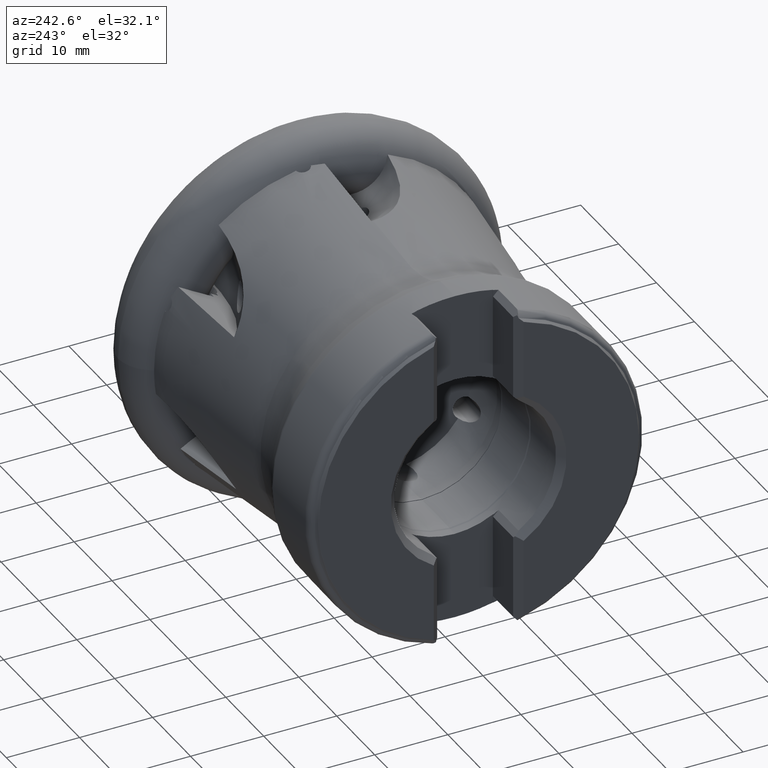
[diagram: clean part render]
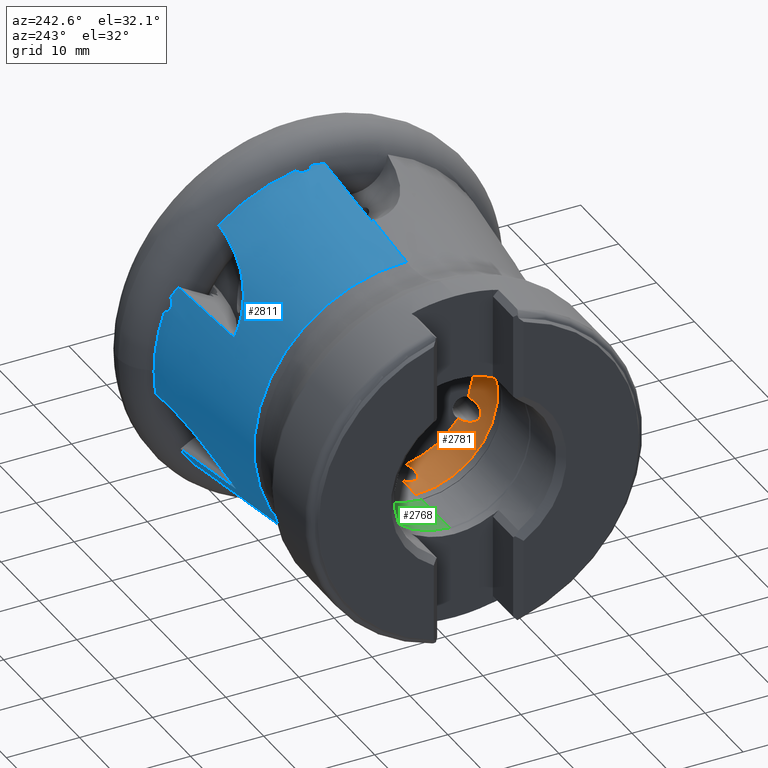
[diagram: same view with three faces highlighted in distinct colors, each labeled with its STEP entity id]
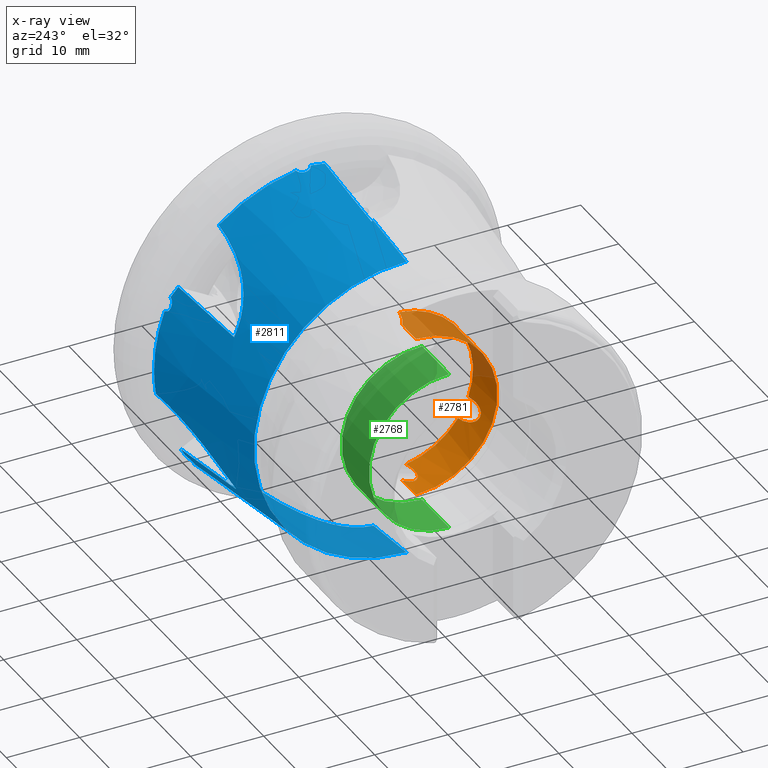
[diagram: x-ray of the same camera — body ghosted, the three highlighted faces saturated]
A machine part, auxiliary view with three faces highlighted in distinct colors.
The next image is the same camera in x-ray (body ghosted, the three faces saturated) — at least one of them is partly hidden behind the body in this view.
Their STEP definitions:

[orange] entity #2781 — the highlighted cylindrical surface (partial cylindrical patch) has radius 11.15 mm, axis along (1, -0, -0).
#460 = EDGE_LOOP ( 'NONE', ( #3216, #3633, #3610, #3591, #3606, #3605, #3601, #3613, #3621, #3594, #3590, #3618, #3617 ) ) ;
#829 = VERTEX_POINT ( 'NONE', #5243 ) ;
#856 = VERTEX_POINT ( 'NONE', #2672 ) ;
#910 = VERTEX_POINT ( 'NONE', #2673 ) ;
#916 = VERTEX_POINT ( 'NONE', #2621 ) ;
#930 = VERTEX_POINT ( 'NONE', #7583 ) ;
#932 = VERTEX_POINT ( 'NONE', #7594 ) ;
#942 = VERTEX_POINT ( 'NONE', #7584 ) ;
#945 = VERTEX_POINT ( 'NONE', #7589 ) ;
#1018 = CARTESIAN_POINT ( 'NONE',  ( 0.0000000000000000000, 1.365481181049298400E-015, 11.14999999999999700 ) ) ;
#1019 = CARTESIAN_POINT ( 'NONE',  ( -32.29904181246355000, 0.0000000000000000000, 0.0000000000000000000 ) ) ;
#1020 = DIRECTION ( 'NONE',  ( 1.000000000000000000, -0.0000000000000000000, -0.0000000000000000000 ) ) ;
#1021 = DIRECTION ( 'NONE',  ( 0.0000000000000000000, 0.0000000000000000000, -1.000000000000000000 ) ) ;
#1023 = DIRECTION ( 'NONE',  ( 1.000000000000000000, -0.0000000000000000000, -0.0000000000000000000 ) ) ;
#1024 = CARTESIAN_POINT ( 'NONE',  ( -25.85000000000000500, -8.492696526799107900, 7.224721842652094500 ) ) ;
#1025 = CARTESIAN_POINT ( 'NONE',  ( -26.27125676650302900, -8.430960953204799300, 7.297292317040339400 ) ) ;
#1026 = CARTESIAN_POINT ( 'NONE',  ( -25.84999999999999800, 0.0000000000000000000, 0.0000000000000000000 ) ) ;
#1027 = DIRECTION ( 'NONE',  ( 1.000000000000000000, -0.0000000000000000000, -0.0000000000000000000 ) ) ;
#1028 = DIRECTION ( 'NONE',  ( 0.0000000000000000000, 0.0000000000000000000, -1.000000000000000000 ) ) ;
#1029 = CARTESIAN_POINT ( 'NONE',  ( -26.70268852159224700, -8.385674476170972700, 7.348732890435326400 ) ) ;
#1030 = CARTESIAN_POINT ( 'NONE',  ( -27.35253180504465600, -8.355734774718406800, 7.382711172284831300 ) ) ;
#1031 = CARTESIAN_POINT ( 'NONE',  ( -27.57074560218834900, -8.352154196715124700, 7.386750651095960400 ) ) ;
#1032 = CARTESIAN_POINT ( 'NONE',  ( -28.00350344363635100, -8.362820151239203500, 7.374673147007954700 ) ) ;
#1033 = CARTESIAN_POINT ( 'NONE',  ( -28.21853476435540700, -8.376751429759247400, 7.358964874840396000 ) ) ;
#1034 = CARTESIAN_POINT ( 'NONE',  ( -28.64406353578609600, -8.432949090000267500, 7.294497802492776900 ) ) ;
#1035 = CARTESIAN_POINT ( 'NONE',  ( -28.85534912507454000, -8.474937882718752000, 7.246314942099926000 ) ) ;
#1036 = CARTESIAN_POINT ( 'NONE',  ( -29.14074530450723800, -8.576736145903501200, 7.124948082095956500 ) ) ;
#1037 = CARTESIAN_POINT ( 'NONE',  ( -29.23152876471797500, -8.617957967614266600, 7.075269791942285600 ) ) ;
#1038 = CARTESIAN_POINT ( 'NONE',  ( -29.38454267036006600, -8.716563902649811600, 6.953427636163299400 ) ) ;
#1039 = CARTESIAN_POINT ( 'NONE',  ( -29.44624027904977100, -8.774061839332928200, 6.881065242200922900 ) ) ;
#1040 = CARTESIAN_POINT ( 'NONE',  ( -29.52039851207418400, -8.900331318139413000, 6.716942939701859800 ) ) ;
#1041 = CARTESIAN_POINT ( 'NONE',  ( -29.53122877785418500, -8.967367247870305000, 6.627269812723159100 ) ) ;
#1042 = CARTESIAN_POINT ( 'NONE',  ( -29.50750158478972900, -9.095212105421921900, 6.450697426340446400 ) ) ;
#1043 = CARTESIAN_POINT ( 'NONE',  ( -29.47419073280669400, -9.155936707129637100, 6.364053143120470300 ) ) ;
#1044 = CARTESIAN_POINT ( 'NONE',  ( -29.33682026034794500, -9.323683111221637200, 6.118074109981218800 ) ) ;
#1045 = CARTESIAN_POINT ( 'NONE',  ( -29.19781386989603400, -9.417177773834271900, 5.971818620644157200 ) ) ;
#1046 = CARTESIAN_POINT ( 'NONE',  ( -29.04398231743207500, -9.497243971403621600, 5.841648478609225300 ) ) ;
#1047 = CARTESIAN_POINT ( 'NONE',  ( -27.98973702992653000, -9.445642024903747800, -5.924723346905923700 ) ) ;
#1048 = CARTESIAN_POINT ( 'NONE',  ( -27.65122404184187500, -9.357787258124929500, -6.064788060241014000 ) ) ;
#1049 = CARTESIAN_POINT ( 'NONE',  ( -25.84999999999999800, 0.0000000000000000000, 0.0000000000000000000 ) ) ;
#1050 = DIRECTION ( 'NONE',  ( 1.000000000000000000, -0.0000000000000000000, -0.0000000000000000000 ) ) ;
#1051 = DIRECTION ( 'NONE',  ( 0.0000000000000000000, 0.0000000000000000000, -1.000000000000000000 ) ) ;
#1052 = CARTESIAN_POINT ( 'NONE',  ( -27.30201525581553700, -9.286565412215592700, -6.171916532230704400 ) ) ;
#1053 = CARTESIAN_POINT ( 'NONE',  ( -26.58788488835342900, -9.172396273203469600, -6.340346792053628300 ) ) ;
#1054 = CARTESIAN_POINT ( 'NONE',  ( -26.22237795968942800, -9.129536751255626500, -6.401275138020767300 ) ) ;
#1055 = CARTESIAN_POINT ( 'NONE',  ( -25.84999999999999800, -9.102050012190872500, -6.440123102517225600 ) ) ;
#1056 = CARTESIAN_POINT ( 'NONE',  ( -29.50799385159563600, -1.073567921365343500, -11.09819588573823300 ) ) ;
#1057 = CARTESIAN_POINT ( 'NONE',  ( -29.46286025454564600, -0.8460033855089065200, -11.12020901185803400 ) ) ;
#1058 = CARTESIAN_POINT ( 'NONE',  ( -25.84999999999999800, 0.0000000000000000000, 0.0000000000000000000 ) ) ;
#1059 = DIRECTION ( 'NONE',  ( 1.000000000000000000, -0.0000000000000000000, -0.0000000000000000000 ) ) ;
#1060 = DIRECTION ( 'NONE',  ( 0.0000000000000000000, 0.0000000000000000000, -1.000000000000000000 ) ) ;
#1061 = CARTESIAN_POINT ( 'NONE',  ( 0.0000000000000000000, 0.0000000000000000000, -11.14999999999999700 ) ) ;
#1062 = CARTESIAN_POINT ( 'NONE',  ( -29.33575754241542600, -0.6415740424387603700, -11.13292186402024300 ) ) ;
#1063 = CARTESIAN_POINT ( 'NONE',  ( -29.03888835685205900, -0.2893676189608385100, -11.14763799481343300 ) ) ;
#1064 = CARTESIAN_POINT ( 'NONE',  ( -28.86240986605501700, -0.1354831957671578100, -11.14999999999999900 ) ) ;
#1065 = CARTESIAN_POINT ( 'NONE',  ( -28.67635802961098100, 1.390289344418008500E-014, -11.14999999999999700 ) ) ;
#1066 = DIRECTION ( 'NONE',  ( 1.000000000000000000, -0.0000000000000000000, -0.0000000000000000000 ) ) ;
#1696 = EDGE_CURVE ( 'NONE', #930, #856, #3179, .T. ) ;
#1697 = EDGE_CURVE ( 'NONE', #942, #910, #3126, .T. ) ;
#1706 = EDGE_CURVE ( 'NONE', #932, #829, #3151, .T. ) ;
#1711 = EDGE_CURVE ( 'NONE', #916, #945, #3149, .T. ) ;
#1786 = EDGE_CURVE ( 'NONE', #2024, #2041, #4805, .T. ) ;
#1788 = EDGE_CURVE ( 'NONE', #2024, #930, #4807, .T. ) ;
#1789 = EDGE_CURVE ( 'NONE', #856, #2017, #4812, .T. ) ;
#1790 = EDGE_CURVE ( 'NONE', #2017, #942, #3093, .T. ) ;
#1791 = EDGE_CURVE ( 'NONE', #910, #932, #4814, .T. ) ;
#1792 = EDGE_CURVE ( 'NONE', #829, #2075, #3140, .T. ) ;
#1793 = EDGE_CURVE ( 'NONE', #2075, #916, #4810, .T. ) ;
#1794 = EDGE_CURVE ( 'NONE', #945, #2081, #3089, .T. ) ;
#1795 = EDGE_CURVE ( 'NONE', #2041, #2081, #4816, .T. ) ;
#2017 = VERTEX_POINT ( 'NONE', #5112 ) ;
#2024 = VERTEX_POINT ( 'NONE', #5119 ) ;
#2041 = VERTEX_POINT ( 'NONE', #5136 ) ;
#2075 = VERTEX_POINT ( 'NONE', #5170 ) ;
#2081 = VERTEX_POINT ( 'NONE', #5176 ) ;
#2621 = CARTESIAN_POINT ( 'NONE',  ( -25.84999999999999800, -2.010444387613850000, -10.96725186016587700 ) ) ;
#2672 = CARTESIAN_POINT ( 'NONE',  ( -25.84999999999999800, -1.026285204183805100, 11.10266808833234200 ) ) ;
#2673 = CARTESIAN_POINT ( 'NONE',  ( -25.84999999999999800, -10.12833521637438100, 4.662544985815199700 ) ) ;
#2781 = ADVANCED_FACE ( 'NONE', ( #4177 ), #4187, .F. ) ;
#3089 = B_SPLINE_CURVE_WITH_KNOTS ( 'NONE', 3,
 ( #1056, #1057, #1062, #1063, #1064, #1065 ),
 .UNSPECIFIED., .F., .F.,
 ( 4, 2, 4 ),
 ( 0.004287498007270833100, 0.004975981053233189500, 0.005664464099195545100 ),
 .UNSPECIFIED. ) ;
#3093 = B_SPLINE_CURVE_WITH_KNOTS ( 'NONE', 3,
 ( #1024, #1025, #1029, #1030, #1031, #1032, #1033, #1034, #1035, #1036, #1037, #1038, #1039, #1040, #1041, #1042, #1043, #1044, #1045, #1046 ),
 .UNSPECIFIED., .F., .F.,
 ( 4, 2, 2, 2, 2, 2, 2, 2, 2, 4 ),
 ( 0.003190311595425564700, 0.004489410090481637900, 0.005138959338009669100, 0.005788508585537700300, 0.006438057833065731500, 0.006762832456829747500, 0.007087607080593763500, 0.007412381704357779600, 0.007737156328121795600, 0.008386705575649825900 ),
 .UNSPECIFIED. ) ;
#3126 = B_SPLINE_CURVE_WITH_KNOTS ( 'NONE', 3,
 ( #5462, #5465, #5474, #5475, #5476, #5477, #5478, #5479, #5480, #5481 ),
 .UNSPECIFIED., .F., .F.,
 ( 4, 2, 2, 2, 4 ),
 ( 0.008386705575649825900, 0.009268095520786355500, 0.01014948546592288300, 0.01103087541105941100, 0.01191226535619594100 ),
 .UNSPECIFIED. ) ;
#3140 = B_SPLINE_CURVE_WITH_KNOTS ( 'NONE', 3,
 ( #1047, #1048, #1052, #1053, #1054, #1055 ),
 .UNSPECIFIED., .F., .F.,
 ( 4, 2, 4 ),
 ( 0.0000000000000000000, 0.001113803814707593700, 0.002227607629415187400 ),
 .UNSPECIFIED. ) ;
#3149 = B_SPLINE_CURVE_WITH_KNOTS ( 'NONE', 3,
 ( #5601, #5604, #5605, #5606, #5607, #5608, #5609, #5610, #5611, #5612, #5613, #5614, #5615, #5616, #5617, #5618, #5619, #5620 ),
 .UNSPECIFIED., .F., .F.,
 ( 4, 2, 2, 2, 2, 2, 2, 2, 4 ),
 ( 0.0000000000000000000, 0.001071874501817712600, 0.002143749003635425200, 0.002679686254544281200, 0.003215623505453137600, 0.003483592130907561500, 0.003751560756361985300, 0.004019529381816409200, 0.004287498007270833100 ),
 .UNSPECIFIED. ) ;
#3151 = B_SPLINE_CURVE_WITH_KNOTS ( 'NONE', 3,
 ( #5545, #5516, #5548, #5549, #5550, #5551, #5552, #5553, #5554, #5555, #5556, #5557, #5558, #5559, #5560, #5561, #5562, #5563, #5564, #5565, #5566, #5567, #5568, #5569, #5570, #5571 ),
 .UNSPECIFIED., .F., .F.,
 ( 4, 2, 2, 2, 2, 2, 2, 2, 2, 2, 2, 2, 4 ),
 ( 0.009958864184129917500, 0.01076065810899776300, 0.01156245203386561100, 0.01236424595873345700, 0.01276514292116738600, 0.01316603988360131500, 0.01356693684603524200, 0.01376738532725220600, 0.01396783380846917200, 0.01436873077090310000, 0.01476962773333702700, 0.01557142165820487600, 0.01637321558307272600 ),
 .UNSPECIFIED. ) ;
#3179 = B_SPLINE_CURVE_WITH_KNOTS ( 'NONE', 3,
 ( #5428, #5461, #5466, #5467, #5468, #5469, #5470, #5471 ),
 .UNSPECIFIED., .F., .F.,
 ( 4, 2, 2, 4 ),
 ( 0.009816031539930379300, 0.01058157923806099500, 0.01134712693619161300, 0.01287822233245285500 ),
 .UNSPECIFIED. ) ;
#3216 = ORIENTED_EDGE ( 'NONE', *, *, #1786, .F. ) ;
#3590 = ORIENTED_EDGE ( 'NONE', *, *, #1711, .T. ) ;
#3591 = ORIENTED_EDGE ( 'NONE', *, *, #1789, .T. ) ;
#3594 = ORIENTED_EDGE ( 'NONE', *, *, #1793, .T. ) ;
#3601 = ORIENTED_EDGE ( 'NONE', *, *, #1791, .T. ) ;
#3605 = ORIENTED_EDGE ( 'NONE', *, *, #1697, .T. ) ;
#3606 = ORIENTED_EDGE ( 'NONE', *, *, #1790, .T. ) ;
#3610 = ORIENTED_EDGE ( 'NONE', *, *, #1696, .T. ) ;
#3613 = ORIENTED_EDGE ( 'NONE', *, *, #1706, .T. ) ;
#3617 = ORIENTED_EDGE ( 'NONE', *, *, #1795, .F. ) ;
#3618 = ORIENTED_EDGE ( 'NONE', *, *, #1794, .T. ) ;
#3621 = ORIENTED_EDGE ( 'NONE', *, *, #1792, .T. ) ;
#3633 = ORIENTED_EDGE ( 'NONE', *, *, #1788, .T. ) ;
#3659 = DIRECTION ( 'NONE',  ( 0.0000000000000000000, 0.0000000000000000000, -1.000000000000000000 ) ) ;
#3660 = CARTESIAN_POINT ( 'NONE',  ( 0.0000000000000000000, 0.0000000000000000000, 0.0000000000000000000 ) ) ;
#3661 = DIRECTION ( 'NONE',  ( 1.000000000000000000, -0.0000000000000000000, -0.0000000000000000000 ) ) ;
#4177 = FACE_OUTER_BOUND ( 'NONE', #460, .T. ) ;
#4187 = CYLINDRICAL_SURFACE ( 'NONE', #7221, 11.14999999999999700 ) ;
#4805 = CIRCLE ( 'NONE', #7492, 11.14999999999999700 ) ;
#4807 = LINE ( 'NONE', #1018, #4813 ) ;
#4810 = CIRCLE ( 'NONE', #7495, 11.14999999999999700 ) ;
#4812 = CIRCLE ( 'NONE', #7493, 11.14999999999999700 ) ;
#4813 = VECTOR ( 'NONE', #1023, 1000.000000000000000 ) ;
#4814 = CIRCLE ( 'NONE', #7494, 11.14999999999999700 ) ;
#4815 = VECTOR ( 'NONE', #1066, 1000.000000000000000 ) ;
#4816 = LINE ( 'NONE', #1061, #4815 ) ;
#5112 = CARTESIAN_POINT ( 'NONE',  ( -25.85000000000000500, -8.492696526799107900, 7.224721842652094500 ) ) ;
#5119 = CARTESIAN_POINT ( 'NONE',  ( -32.29904181246355000, 1.365481181049298400E-015, 11.14999999999999700 ) ) ;
#5136 = CARTESIAN_POINT ( 'NONE',  ( -32.29904181246355000, 0.0000000000000000000, -11.14999999999999700 ) ) ;
#5170 = CARTESIAN_POINT ( 'NONE',  ( -25.84999999999999800, -9.102050012190872500, -6.440123102517225600 ) ) ;
#5176 = CARTESIAN_POINT ( 'NONE',  ( -28.67635802961098100, 1.390289344418008500E-014, -11.14999999999999700 ) ) ;
#5243 = CARTESIAN_POINT ( 'NONE',  ( -27.98973702992653000, -9.445642024903747800, -5.924723346905923700 ) ) ;
#5428 = CARTESIAN_POINT ( 'NONE',  ( -28.67635802961091700, 1.789560752036854300E-014, 11.14999999999999700 ) ) ;
#5461 = CARTESIAN_POINT ( 'NONE',  ( -28.47059289232860000, -0.1498384477643137400, 11.14999999999999500 ) ) ;
#5462 = CARTESIAN_POINT ( 'NONE',  ( -29.04398231743207500, -9.497243971403621600, 5.841648478609225300 ) ) ;
#5465 = CARTESIAN_POINT ( 'NONE',  ( -28.83524435937506100, -9.605887837517698800, 5.665017292008355000 ) ) ;
#5466 = CARTESIAN_POINT ( 'NONE',  ( -28.25217063696806700, -0.2778308771211426800, 11.14711080704291700 ) ) ;
#5467 = CARTESIAN_POINT ( 'NONE',  ( -27.79785458062777800, -0.5036950591664307600, 11.13919030397390300 ) ) ;
#5468 = CARTESIAN_POINT ( 'NONE',  ( -27.56061014767846000, -0.6015080345835837100, 11.13407479623257500 ) ) ;
#5469 = CARTESIAN_POINT ( 'NONE',  ( -26.84280642977706000, -0.8508393352733337700, 11.11873672503456200 ) ) ;
#5470 = CARTESIAN_POINT ( 'NONE',  ( -26.35185827144899300, -0.9624215850915723800, 11.10857137994103500 ) ) ;
#5471 = CARTESIAN_POINT ( 'NONE',  ( -25.84999999999999800, -1.026285204183805100, 11.10266808833234200 ) ) ;
#5474 = CARTESIAN_POINT ( 'NONE',  ( -28.59267286801484400, -9.692391171751609100, 5.513832085072171400 ) ) ;
#5475 = CARTESIAN_POINT ( 'NONE',  ( -28.08669308177924200, -9.836552880478743400, 5.252334558857156400 ) ) ;
#5476 = CARTESIAN_POINT ( 'NONE',  ( -27.82219986851498900, -9.894223646167963800, 5.141809862758163000 ) ) ;
#5477 = CARTESIAN_POINT ( 'NONE',  ( -27.27634507087926600, -9.990750783490945300, 4.951643061380878800 ) ) ;
#5478 = CARTESIAN_POINT ( 'NONE',  ( -26.99325901929969300, -10.02951227529577400, 4.871999364626447900 ) ) ;
#5479 = CARTESIAN_POINT ( 'NONE',  ( -26.42497349170799800, -10.09046286409400400, 4.744476101485705800 ) ) ;
#5480 = CARTESIAN_POINT ( 'NONE',  ( -26.13856725706337900, -10.11291412292029100, 4.696043859151815000 ) ) ;
#5481 = CARTESIAN_POINT ( 'NONE',  ( -25.84999999999999800, -10.12833521637438100, 4.662544985815199700 ) ) ;
#5516 = CARTESIAN_POINT ( 'NONE',  ( -26.11039555769503600, -10.52290907816619600, -3.687052089868210200 ) ) ;
#5545 = CARTESIAN_POINT ( 'NONE',  ( -25.85000000000001600, -10.50314091441258500, -3.742530017513868500 ) ) ;
#5548 = CARTESIAN_POINT ( 'NONE',  ( -26.37332634113454700, -10.53864730590131600, -3.641523639074982600 ) ) ;
#5549 = CARTESIAN_POINT ( 'NONE',  ( -26.90503537943010300, -10.56181223310846700, -3.573780044250531900 ) ) ;
#5550 = CARTESIAN_POINT ( 'NONE',  ( -27.17552067108845600, -10.56930716198334300, -3.551377905902553000 ) ) ;
#5551 = CARTESIAN_POINT ( 'NONE',  ( -27.71552052634048400, -10.57327437960357100, -3.539549096778266300 ) ) ;
#5552 = CARTESIAN_POINT ( 'NONE',  ( -27.98403779159763300, -10.57002565003230500, -3.549442677396200900 ) ) ;
#5553 = CARTESIAN_POINT ( 'NONE',  ( -28.38305633657343200, -10.55143200118641500, -3.604185638248232700 ) ) ;
#5554 = CARTESIAN_POINT ( 'NONE',  ( -28.51542918797448000, -10.54291801810268600, -3.629158011275533300 ) ) ;
#5555 = CARTESIAN_POINT ( 'NONE',  ( -28.77819061484050100, -10.51825109826696200, -3.700040816132375500 ) ) ;
#5556 = CARTESIAN_POINT ( 'NONE',  ( -28.90645439963487800, -10.50234559872431100, -3.745315895493809900 ) ) ;
#5557 = CARTESIAN_POINT ( 'NONE',  ( -29.14698262269091000, -10.45834509193758100, -3.866480592221784600 ) ) ;
#5558 = CARTESIAN_POINT ( 'NONE',  ( -29.25939127862171300, -10.43025939589707100, -3.942493965455294600 ) ) ;
#5559 = CARTESIAN_POINT ( 'NONE',  ( -29.39343037834001400, -10.37306861316544500, -4.089586162425185900 ) ) ;
#5560 = CARTESIAN_POINT ( 'NONE',  ( -29.43082166578540900, -10.35205183504225900, -4.142631101514090200 ) ) ;
#5561 = CARTESIAN_POINT ( 'NONE',  ( -29.48844387031064700, -10.30518496074565400, -4.257878880787375300 ) ) ;
#5562 = CARTESIAN_POINT ( 'NONE',  ( -29.50790636806532800, -10.27961086484395600, -4.319335382345288500 ) ) ;
#5563 = CARTESIAN_POINT ( 'NONE',  ( -29.53596284987968400, -10.20002560815143500, -4.505575246763334500 ) ) ;
#5564 = CARTESIAN_POINT ( 'NONE',  ( -29.51381980087283800, -10.14217225436192200, -4.634147874363866200 ) ) ;
#5565 = CARTESIAN_POINT ( 'NONE',  ( -29.42154111488150300, -10.03277276565024300, -4.866462287067136600 ) ) ;
#5566 = CARTESIAN_POINT ( 'NONE',  ( -29.35230300755666400, -9.979863656711939900, -4.973621789431592600 ) ) ;
#5567 = CARTESIAN_POINT ( 'NONE',  ( -29.11100425405839000, -9.829811573088319300, -5.267416224398174600 ) ) ;
#5568 = CARTESIAN_POINT ( 'NONE',  ( -28.90668599988699600, -9.740595302505969500, -5.428545996680773200 ) ) ;
#5569 = CARTESIAN_POINT ( 'NONE',  ( -28.46897782398749400, -9.580154498701176600, -5.706921084638892700 ) ) ;
#5570 = CARTESIAN_POINT ( 'NONE',  ( -28.23342236638445300, -9.508886033717297800, -5.823894965141116500 ) ) ;
#5571 = CARTESIAN_POINT ( 'NONE',  ( -27.98973702992653000, -9.445642024903747800, -5.924723346905923700 ) ) ;
#5601 = CARTESIAN_POINT ( 'NONE',  ( -25.84999999999999800, -2.010444387613850000, -10.96725186016587700 ) ) ;
#5604 = CARTESIAN_POINT ( 'NONE',  ( -26.20078142261008500, -2.088481621824195500, -10.95294658829436000 ) ) ;
#5605 = CARTESIAN_POINT ( 'NONE',  ( -26.55370356905937600, -2.146954705788751000, -10.94140585113192500 ) ) ;
#5606 = CARTESIAN_POINT ( 'NONE',  ( -27.26472740965759900, -2.217029590990614800, -10.92742221663299800 ) ) ;
#5607 = CARTESIAN_POINT ( 'NONE',  ( -27.62570386606793000, -2.229575642011566700, -10.92484683376801700 ) ) ;
#5608 = CARTESIAN_POINT ( 'NONE',  ( -28.16293958803506200, -2.188353437268240100, -10.93315168214462000 ) ) ;
#5609 = CARTESIAN_POINT ( 'NONE',  ( -28.34046823552341000, -2.164605180443754100, -10.93794419449178100 ) ) ;
#5610 = CARTESIAN_POINT ( 'NONE',  ( -28.69059026901666700, -2.085125052009013700, -10.95337355824701400 ) ) ;
#5611 = CARTESIAN_POINT ( 'NONE',  ( -28.86429472895121900, -2.029486016627060100, -10.96407593319643900 ) ) ;
#5612 = CARTESIAN_POINT ( 'NONE',  ( -29.10412620856497800, -1.903512024042959300, -10.98639889201522400 ) ) ;
#5613 = CARTESIAN_POINT ( 'NONE',  ( -29.17986111628248500, -1.854547346733000700, -10.99484344994061900 ) ) ;
#5614 = CARTESIAN_POINT ( 'NONE',  ( -29.31576391940979700, -1.738973574648220200, -11.01371414449511700 ) ) ;
#5615 = CARTESIAN_POINT ( 'NONE',  ( -29.37718968494170800, -1.670570793627700600, -11.02441265884899800 ) ) ;
#5616 = CARTESIAN_POINT ( 'NONE',  ( -29.47004133889700800, -1.517482538196253100, -11.04652560741980800 ) ) ;
#5617 = CARTESIAN_POINT ( 'NONE',  ( -29.50200925753126700, -1.431013037410894000, -11.05814824861684900 ) ) ;
#5618 = CARTESIAN_POINT ( 'NONE',  ( -29.52943745917899000, -1.254085116257815700, -11.07960791376700800 ) ) ;
#5619 = CARTESIAN_POINT ( 'NONE',  ( -29.52556057024394700, -1.162139682475989500, -11.08962802457889700 ) ) ;
#5620 = CARTESIAN_POINT ( 'NONE',  ( -29.50799385159563600, -1.073567921365343500, -11.09819588573823300 ) ) ;
#7221 = AXIS2_PLACEMENT_3D ( 'NONE', #3660, #3661, #3659 ) ;
#7492 = AXIS2_PLACEMENT_3D ( 'NONE', #1019, #1020, #1021 ) ;
#7493 = AXIS2_PLACEMENT_3D ( 'NONE', #1026, #1027, #1028 ) ;
#7494 = AXIS2_PLACEMENT_3D ( 'NONE', #1049, #1050, #1051 ) ;
#7495 = AXIS2_PLACEMENT_3D ( 'NONE', #1058, #1059, #1060 ) ;
#7583 = CARTESIAN_POINT ( 'NONE',  ( -28.67635802961091700, 1.789560752036854300E-014, 11.14999999999999700 ) ) ;
#7584 = CARTESIAN_POINT ( 'NONE',  ( -29.04398231743207500, -9.497243971403621600, 5.841648478609225300 ) ) ;
#7589 = CARTESIAN_POINT ( 'NONE',  ( -29.50799385159563600, -1.073567921365343500, -11.09819588573823300 ) ) ;
#7594 = CARTESIAN_POINT ( 'NONE',  ( -25.85000000000001600, -10.50314091441258500, -3.742530017513868500 ) ) ;

[blue] entity #2811 — the highlighted conical surface has half-angle 6.661 deg.
#510 = EDGE_LOOP ( 'NONE', ( #2464, #2465, #2466, #2467, #2468, #1976, #1975, #1974, #1950, #1977, #2482, #1925, #1924, #1990, #1979, #1978, #1984, #1983, #1982, #1985 ) ) ;
#867 = VERTEX_POINT ( 'NONE', #2642 ) ;
#876 = VERTEX_POINT ( 'NONE', #2633 ) ;
#899 = VERTEX_POINT ( 'NONE', #2674 ) ;
#900 = VERTEX_POINT ( 'NONE', #2630 ) ;
#906 = VERTEX_POINT ( 'NONE', #2670 ) ;
#908 = VERTEX_POINT ( 'NONE', #2634 ) ;
#909 = VERTEX_POINT ( 'NONE', #2647 ) ;
#912 = VERTEX_POINT ( 'NONE', #2654 ) ;
#1067 = CARTESIAN_POINT ( 'NONE',  ( -8.259298583854146600, 23.10317955380113000, -3.437829605566639300 ) ) ;
#1087 = CARTESIAN_POINT ( 'NONE',  ( -29.78897802662788800, 0.0000000000000000000, 0.0000000000000000000 ) ) ;
#1088 = DIRECTION ( 'NONE',  ( 1.000000000000000000, -0.0000000000000000000, -0.0000000000000000000 ) ) ;
#1089 = DIRECTION ( 'NONE',  ( 0.0000000000000000000, 0.0000000000000000000, -1.000000000000000000 ) ) ;
#1633 = EDGE_CURVE ( 'NONE', #867, #900, #2118, .T. ) ;
#1637 = EDGE_CURVE ( 'NONE', #908, #6024, #2121, .T. ) ;
#1717 = EDGE_CURVE ( 'NONE', #906, #912, #3180, .T. ) ;
#1728 = EDGE_CURVE ( 'NONE', #909, #900, #3150, .T. ) ;
#1737 = EDGE_CURVE ( 'NONE', #2057, #6024, #3123, .T. ) ;
#1817 = EDGE_CURVE ( 'NONE', #876, #2079, #4844, .T. ) ;
#1818 = EDGE_CURVE ( 'NONE', #2077, #2079, #3104, .T. ) ;
#1819 = EDGE_CURVE ( 'NONE', #2086, #2077, #3170, .T. ) ;
#1820 = EDGE_CURVE ( 'NONE', #2086, #2057, #3116, .T. ) ;
#1821 = EDGE_CURVE ( 'NONE', #2047, #908, #3160, .T. ) ;
#1822 = EDGE_CURVE ( 'NONE', #2028, #2047, #3105, .T. ) ;
#1823 = EDGE_CURVE ( 'NONE', #2028, #909, #3121, .T. ) ;
#1824 = EDGE_CURVE ( 'NONE', #2054, #867, #4849, .T. ) ;
#1825 = EDGE_CURVE ( 'NONE', #2050, #2054, #3127, .T. ) ;
#1826 = EDGE_CURVE ( 'NONE', #2058, #2050, #3162, .T. ) ;
#1827 = EDGE_CURVE ( 'NONE', #2058, #906, #3133, .T. ) ;
#1828 = EDGE_CURVE ( 'NONE', #2064, #912, #4848, .T. ) ;
#1829 = EDGE_CURVE ( 'NONE', #2083, #2064, #3178, .T. ) ;
#1830 = EDGE_CURVE ( 'NONE', #899, #2083, #4851, .T. ) ;
#1924 = ORIENTED_EDGE ( 'NONE', *, *, #1824, .F. ) ;
#1925 = ORIENTED_EDGE ( 'NONE', *, *, #1633, .F. ) ;
#1950 = ORIENTED_EDGE ( 'NONE', *, *, #1822, .F. ) ;
#1974 = ORIENTED_EDGE ( 'NONE', *, *, #1821, .F. ) ;
#1975 = ORIENTED_EDGE ( 'NONE', *, *, #1637, .F. ) ;
#1976 = ORIENTED_EDGE ( 'NONE', *, *, #1737, .T. ) ;
#1977 = ORIENTED_EDGE ( 'NONE', *, *, #1823, .T. ) ;
#1978 = ORIENTED_EDGE ( 'NONE', *, *, #1827, .T. ) ;
#1979 = ORIENTED_EDGE ( 'NONE', *, *, #1826, .F. ) ;
#1982 = ORIENTED_EDGE ( 'NONE', *, *, #1829, .F. ) ;
#1983 = ORIENTED_EDGE ( 'NONE', *, *, #1828, .F. ) ;
#1984 = ORIENTED_EDGE ( 'NONE', *, *, #1717, .T. ) ;
#1985 = ORIENTED_EDGE ( 'NONE', *, *, #1830, .F. ) ;
#1990 = ORIENTED_EDGE ( 'NONE', *, *, #1825, .F. ) ;
#2028 = VERTEX_POINT ( 'NONE', #5123 ) ;
#2047 = VERTEX_POINT ( 'NONE', #5142 ) ;
#2050 = VERTEX_POINT ( 'NONE', #5145 ) ;
#2054 = VERTEX_POINT ( 'NONE', #5149 ) ;
#2057 = VERTEX_POINT ( 'NONE', #5152 ) ;
#2058 = VERTEX_POINT ( 'NONE', #5153 ) ;
#2064 = VERTEX_POINT ( 'NONE', #5159 ) ;
#2077 = VERTEX_POINT ( 'NONE', #5172 ) ;
#2079 = VERTEX_POINT ( 'NONE', #5174 ) ;
#2083 = VERTEX_POINT ( 'NONE', #5178 ) ;
#2086 = VERTEX_POINT ( 'NONE', #5181 ) ;
#2118 = CIRCLE ( 'NONE', #3427, 23.35755933080304900 ) ;
#2121 = CIRCLE ( 'NONE', #3429, 23.35755933080304900 ) ;
#2464 = ORIENTED_EDGE ( 'NONE', *, *, #3282, .T. ) ;
#2465 = ORIENTED_EDGE ( 'NONE', *, *, #1817, .T. ) ;
#2466 = ORIENTED_EDGE ( 'NONE', *, *, #1818, .F. ) ;
#2467 = ORIENTED_EDGE ( 'NONE', *, *, #1819, .F. ) ;
#2468 = ORIENTED_EDGE ( 'NONE', *, *, #1820, .T. ) ;
#2482 = ORIENTED_EDGE ( 'NONE', *, *, #1728, .T. ) ;
#2537 = CARTESIAN_POINT ( 'NONE',  ( -21.10432963797337500, 0.1993562321270252500, 21.85681944625827800 ) ) ;
#2541 = DIRECTION ( 'NONE',  ( 0.9932499999999996300, 1.420507805710285800E-017, 0.1159932648906851100 ) ) ;
#2545 = CARTESIAN_POINT ( 'NONE',  ( -21.09869952453777100, 0.09936353463476828300, 21.85815431258176000 ) ) ;
#2546 = CARTESIAN_POINT ( 'NONE',  ( -8.255639792947558700, 2.860528353651572300E-015, 23.35798661004286100 ) ) ;
#2550 = CARTESIAN_POINT ( 'NONE',  ( -8.794040015883560100, 0.3000000000001637500, 23.29317958684482200 ) ) ;
#2551 = CARTESIAN_POINT ( 'NONE',  ( -21.10722062831362000, 0.3000000000001529800, 21.85510028599445700 ) ) ;
#2552 = CARTESIAN_POINT ( 'NONE',  ( -12.89843385472835600, 0.3000000000001603100, 22.81382240028789000 ) ) ;
#2553 = CARTESIAN_POINT ( 'NONE',  ( -21.09042232680230100, -2.708694215730958400E-015, 21.85912093648258300 ) ) ;
#2554 = CARTESIAN_POINT ( 'NONE',  ( -8.794040015883560100, 0.3000000000001637500, 23.29317958684482200 ) ) ;
#2555 = CARTESIAN_POINT ( 'NONE',  ( -8.643605725123910200, 0.8680326473603715600, 23.30343312544116000 ) ) ;
#2556 = CARTESIAN_POINT ( 'NONE',  ( -17.00282741203699600, 0.3000000000001570300, 22.33446280312862700 ) ) ;
#2557 = CARTESIAN_POINT ( 'NONE',  ( -21.10722062831362000, 0.3000000000001529800, 21.85510028599445700 ) ) ;
#2558 = CARTESIAN_POINT ( 'NONE',  ( -21.08671044453084800, 18.73062510251226300, 11.29219946470902700 ) ) ;
#2559 = CARTESIAN_POINT ( 'NONE',  ( -21.10722062831362700, 19.07707204992784600, 10.66774252186171900 ) ) ;
#2560 = CARTESIAN_POINT ( 'NONE',  ( -8.493172639872296900, 1.436060742780209500, 23.29293067867585200 ) ) ;
#2561 = CARTESIAN_POINT ( 'NONE',  ( -8.342941742279826700, 2.003325387322547200, 23.26168627806557900 ) ) ;
#2562 = CARTESIAN_POINT ( 'NONE',  ( -8.794040015883558300, 20.32248525712084600, 11.38678217228689400 ) ) ;
#2563 = CARTESIAN_POINT ( 'NONE',  ( -8.794040015883558300, 20.32248525712084600, 11.38678217228689400 ) ) ;
#2564 = CARTESIAN_POINT ( 'NONE',  ( -12.89843385472835300, 19.90734975607589500, 11.14710357900842700 ) ) ;
#2565 = CARTESIAN_POINT ( 'NONE',  ( -20.93070818173582000, 18.38348096585274800, 11.87906175238771800 ) ) ;
#2566 = CARTESIAN_POINT ( 'NONE',  ( -20.52302818187778400, 17.86599217048440700, 12.71359864805233100 ) ) ;
#2567 = CARTESIAN_POINT ( 'NONE',  ( -20.35887098541302700, 17.69606150601229500, 12.98084032176922300 ) ) ;
#2568 = CARTESIAN_POINT ( 'NONE',  ( -19.99001509401025000, 17.37017077095026000, 13.48415288124889100 ) ) ;
#2569 = CARTESIAN_POINT ( 'NONE',  ( -19.78418935953425300, 17.21279773522803300, 13.72249764745940400 ) ) ;
#2570 = CARTESIAN_POINT ( 'NONE',  ( -19.33511949738272400, 16.90911264584615700, 14.17676711850417200 ) ) ;
#2571 = CARTESIAN_POINT ( 'NONE',  ( -19.09160384935505000, 16.76291248426391100, 14.39249494364066900 ) ) ;
#2572 = CARTESIAN_POINT ( 'NONE',  ( -18.58384262477769500, 16.48820746652861400, 14.79532783844700500 ) ) ;
#2573 = CARTESIAN_POINT ( 'NONE',  ( -18.31812545334405200, 16.35866628097842200, 14.98397841699995500 ) ) ;
#2574 = CARTESIAN_POINT ( 'NONE',  ( -17.76654125462588100, 16.11402648783196100, 15.34032869355986900 ) ) ;
#2575 = CARTESIAN_POINT ( 'NONE',  ( -17.48065510078624000, 15.99893710930627400, 15.50800544905283300 ) ) ;
#2576 = CARTESIAN_POINT ( 'NONE',  ( -16.89111441415565900, 15.78251719089063500, 15.82558210388829100 ) ) ;
#2577 = CARTESIAN_POINT ( 'NONE',  ( -16.58624945633259200, 15.68084859423281300, 15.97599035012475500 ) ) ;
#2578 = CARTESIAN_POINT ( 'NONE',  ( -15.65808239152570100, 15.39890586134594800, 16.39944670130651600 ) ) ;
#2579 = CARTESIAN_POINT ( 'NONE',  ( -15.02177853077793300, 15.24127589875454300, 16.64543321009598000 ) ) ;
#2580 = CARTESIAN_POINT ( 'NONE',  ( -13.72272593903172800, 14.97717548332377800, 17.08571003610999700 ) ) ;
#2581 = CARTESIAN_POINT ( 'NONE',  ( -13.05988350073040400, 14.87081254706593800, 17.27977469922970900 ) ) ;
#2582 = CARTESIAN_POINT ( 'NONE',  ( -11.71287358512223900, 14.70285194360549300, 17.62823743924204600 ) ) ;
#2583 = CARTESIAN_POINT ( 'NONE',  ( -11.02705079004839200, 14.64124124417348400, 17.78282973570439300 ) ) ;
#2584 = CARTESIAN_POINT ( 'NONE',  ( -9.648625901037831900, 14.55749547395035000, 18.05868495867879300 ) ) ;
#2585 = CARTESIAN_POINT ( 'NONE',  ( -8.955487847781375500, 14.53517534300735500, 18.18015712324685800 ) ) ;
#2586 = CARTESIAN_POINT ( 'NONE',  ( -8.259298583854159000, 14.52883754920347000, 18.28902559900171800 ) ) ;
#2587 = CARTESIAN_POINT ( 'NONE',  ( -8.643605725123910200, 20.61538140570405300, 10.89997823879218900 ) ) ;
#2588 = CARTESIAN_POINT ( 'NONE',  ( -17.00282741203699300, 19.49221216738809700, 10.90742378042880000 ) ) ;
#2589 = CARTESIAN_POINT ( 'NONE',  ( -21.10722062831362700, 19.07707204992784600, 10.66774252186171900 ) ) ;
#2590 = CARTESIAN_POINT ( 'NONE',  ( -8.794040015883560100, 20.02248525712060400, -11.90639741455797900 ) ) ;
#2591 = CARTESIAN_POINT ( 'NONE',  ( -8.493172639872296900, 20.89030006771332300, 10.40280025471266800 ) ) ;
#2592 = CARTESIAN_POINT ( 'NONE',  ( -8.342941742279826700, 21.14687394532997200, 9.895912461565119500 ) ) ;
#2593 = CARTESIAN_POINT ( 'NONE',  ( -21.08671044453084400, 19.14464415229515700, -10.57509743518365900 ) ) ;
#2594 = CARTESIAN_POINT ( 'NONE',  ( -20.93070818173583100, 19.47930973361822600, -9.981030650222347600 ) ) ;
#2595 = CARTESIAN_POINT ( 'NONE',  ( -8.259298583872558600, 0.0000000000000000000, 0.0000000000000000000 ) ) ;
#2596 = DIRECTION ( 'NONE',  ( 1.000000000000000000, -0.0000000000000000000, -0.0000000000000000000 ) ) ;
#2597 = DIRECTION ( 'NONE',  ( 0.0000000000000000000, 0.0000000000000000000, -1.000000000000000000 ) ) ;
#2598 = CARTESIAN_POINT ( 'NONE',  ( -21.10722062831359800, 18.77707204992760700, -11.18735776413277300 ) ) ;
#2599 = CARTESIAN_POINT ( 'NONE',  ( -20.52302818187779100, 19.94329548797501400, -9.115603759427248300 ) ) ;
#2600 = CARTESIAN_POINT ( 'NONE',  ( -20.35887098541302400, 20.08976823412764300, -8.834818650253991400 ) ) ;
#2601 = CARTESIAN_POINT ( 'NONE',  ( -19.99001509401026100, 20.36270432914979600, -8.300932715092454100 ) ) ;
#2602 = CARTESIAN_POINT ( 'NONE',  ( -19.78418935953424900, 20.49043043368604300, -8.045471285181077900 ) ) ;
#2603 = CARTESIAN_POINT ( 'NONE',  ( -19.33511949738272100, 20.73199679108358500, -7.555337547503439700 ) ) ;
#2604 = CARTESIAN_POINT ( 'NONE',  ( -19.09160384935504200, 20.84572248716383300, -7.320860580967574200 ) ) ;
#2605 = CARTESIAN_POINT ( 'NONE',  ( -18.58384262477769500, 21.05723349867849600, -6.881542609658584600 ) ) ;
#2606 = CARTESIAN_POINT ( 'NONE',  ( -18.31812545334404500, 21.15583909936890400, -6.675031362859288100 ) ) ;
#2607 = CARTESIAN_POINT ( 'NONE',  ( -17.76654125462586700, 21.34212759494215900, -6.284991948937916500 ) ) ;
#2608 = CARTESIAN_POINT ( 'NONE',  ( -17.48065510078622600, 21.42979523556038000, -6.101483245682432600 ) ) ;
#2609 = CARTESIAN_POINT ( 'NONE',  ( -16.89111441415565600, 21.59661472708895500, -5.755269771031805700 ) ) ;
#2610 = CARTESIAN_POINT ( 'NONE',  ( -16.58624945633258500, 21.67603779093948900, -5.592018060440787000 ) ) ;
#2611 = CARTESIAN_POINT ( 'NONE',  ( -15.65808239152569400, 21.90179038201333100, -5.136120315757472600 ) ) ;
#2612 = CARTESIAN_POINT ( 'NONE',  ( -15.02177853077792200, 22.03600596631753600, -4.876615509360995300 ) ) ;
#2613 = CARTESIAN_POINT ( 'NONE',  ( -13.72272593903172000, 22.28524667462788500, -4.427759427440920000 ) ) ;
#2614 = CARTESIAN_POINT ( 'NONE',  ( -13.05988350073039500, 22.40013013473748400, -4.238614091060673800 ) ) ;
#2615 = CARTESIAN_POINT ( 'NONE',  ( -11.71287358512223000, 22.61792741813027900, -3.918924571622792300 ) ) ;
#2616 = CARTESIAN_POINT ( 'NONE',  ( -11.02705079004838900, 22.72100292438004500, -3.788271992538575300 ) ) ;
#2617 = CARTESIAN_POINT ( 'NONE',  ( -9.648625901037830100, 22.91802767013092900, -3.577818416578648600 ) ) ;
#2618 = CARTESIAN_POINT ( 'NONE',  ( -8.955487847781363100, 23.01206558502807600, -3.497752533882195100 ) ) ;
#2630 = CARTESIAN_POINT ( 'NONE',  ( -8.259298583872920900, 21.91366384397623100, 8.084980817861692900 ) ) ;
#2633 = CARTESIAN_POINT ( 'NONE',  ( -29.78897802662788800, 2.706521445093884100E-015, 20.84329020357923000 ) ) ;
#2634 = CARTESIAN_POINT ( 'NONE',  ( -8.259298583854159000, 14.52883754920347000, 18.28902559900171800 ) ) ;
#2642 = CARTESIAN_POINT ( 'NONE',  ( -8.259298583872558600, 23.35755933080336500, 0.0000000000000000000 ) ) ;
#2647 = CARTESIAN_POINT ( 'NONE',  ( -8.342941742279826700, 21.14687394532997200, 9.895912461565119500 ) ) ;
#2654 = CARTESIAN_POINT ( 'NONE',  ( -8.259298583872920900, 17.95863069936619300, -14.93529916994516200 ) ) ;
#2670 = CARTESIAN_POINT ( 'NONE',  ( -8.342941742279828400, 19.14354855800733900, -13.36577381650049800 ) ) ;
#2674 = CARTESIAN_POINT ( 'NONE',  ( -29.78897802662788800, 0.0000000000000000000, -20.84329020357923000 ) ) ;
#2811 = ADVANCED_FACE ( 'NONE', ( #4261 ), #4265, .T. ) ;
#3104 = B_SPLINE_CURVE_WITH_KNOTS ( 'NONE', 3,
 ( #2551, #2537, #2545, #2553 ),
 .UNSPECIFIED., .F., .F.,
 ( 4, 4 ),
 ( 2.114194236346733600E-018, 0.0002957698718601648300 ),
 .UNSPECIFIED. ) ;
#3105 = B_SPLINE_CURVE_WITH_KNOTS ( 'NONE', 3,
 ( #2562, #2564, #2588, #2589 ),
 .UNSPECIFIED., .F., .F.,
 ( 4, 4 ),
 ( 0.0005422610846556154600, 0.01293913524187180100 ),
 .UNSPECIFIED. ) ;
#3116 =( BOUNDED_CURVE ( )  B_SPLINE_CURVE ( 3, ( #2554, #2555, #2560, #2561 ),
 .UNSPECIFIED., .F., .T. ) 
 B_SPLINE_CURVE_WITH_KNOTS ( ( 4, 4 ),
 ( 4.694331337052691600, 4.767438720164823200 ),
 .UNSPECIFIED. ) 
 CURVE ( )  GEOMETRIC_REPRESENTATION_ITEM ( )  RATIONAL_B_SPLINE_CURVE ( ( 1.000000000000000000, 0.9995546588022379300, 0.9995546588022379300, 1.000000000000000000 ) ) 
 REPRESENTATION_ITEM ( '' )  );
#3121 =( BOUNDED_CURVE ( )  B_SPLINE_CURVE ( 3, ( #2563, #2587, #2591, #2592 ),
 .UNSPECIFIED., .F., .F. ) 
 B_SPLINE_CURVE_WITH_KNOTS ( ( 4, 4 ),
 ( 4.694331337052691600, 4.767438720164823200 ),
 .UNSPECIFIED. ) 
 CURVE ( )  GEOMETRIC_REPRESENTATION_ITEM ( )  RATIONAL_B_SPLINE_CURVE ( ( 1.000000000000000000, 0.9995546588022379300, 0.9995546588022379300, 1.000000000000000000 ) ) 
 REPRESENTATION_ITEM ( '' )  );
#3123 = B_SPLINE_CURVE_WITH_KNOTS ( 'NONE', 3,
 ( #5727, #5722, #5730, #5731, #5732, #5733, #5734, #5735, #5736, #5737 ),
 .UNSPECIFIED., .F., .F.,
 ( 4, 2, 2, 2, 4 ),
 ( 8.963200053903437800E-005, 0.0007680421846112982800, 0.001446452368683562200, 0.002124862552755825900, 0.002803272736828089700 ),
 .UNSPECIFIED. ) ;
#3127 = B_SPLINE_CURVE_WITH_KNOTS ( 'NONE', 3,
 ( #2598, #2593, #2594, #2599, #2600, #2601, #2602, #2603, #2604, #2605, #2606, #2607, #2608, #2609, #2610, #2611, #2612, #2613, #2614, #2615, #2616, #2617, #2618, #1067 ),
 .UNSPECIFIED., .F., .F.,
 ( 4, 2, 2, 2, 2, 2, 2, 2, 2, 2, 2, 4 ),
 ( 4.906538933386797400E-018, 0.002098344759173705500, 0.003147517138760557600, 0.004196689518347411000, 0.005245861897934262600, 0.006295034277521115200, 0.007344206657107967700, 0.008393379036694820200, 0.01049172379586852400, 0.01259006855504222900, 0.01468841331421593400, 0.01678675807338963700 ),
 .UNSPECIFIED. ) ;
#3133 =( BOUNDED_CURVE ( )  B_SPLINE_CURVE ( 3, ( #2590, #5837, #5843, #5844 ),
 .UNSPECIFIED., .F., .F. ) 
 B_SPLINE_CURVE_WITH_KNOTS ( ( 4, 4 ),
 ( 4.694331337052691600, 4.767438720164823200 ),
 .UNSPECIFIED. ) 
 CURVE ( )  GEOMETRIC_REPRESENTATION_ITEM ( )  RATIONAL_B_SPLINE_CURVE ( ( 1.000000000000000000, 0.9995546588022379300, 0.9995546588022379300, 1.000000000000000000 ) ) 
 REPRESENTATION_ITEM ( '' )  );
#3150 = B_SPLINE_CURVE_WITH_KNOTS ( 'NONE', 3,
 ( #5697, #5692, #5699, #5700, #5701, #5702, #5703, #5704, #5705, #5706 ),
 .UNSPECIFIED., .F., .F.,
 ( 4, 2, 2, 2, 4 ),
 ( 8.963200053907740700E-005, 0.0007680421846113417600, 0.001446452368683606000, 0.002124862552755870500, 0.002803272736828134800 ),
 .UNSPECIFIED. ) ;
#3160 = B_SPLINE_CURVE_WITH_KNOTS ( 'NONE', 3,
 ( #2559, #2558, #2565, #2566, #2567, #2568, #2569, #2570, #2571, #2572, #2573, #2574, #2575, #2576, #2577, #2578, #2579, #2580, #2581, #2582, #2583, #2584, #2585, #2586 ),
 .UNSPECIFIED., .F., .F.,
 ( 4, 2, 2, 2, 2, 2, 2, 2, 2, 2, 2, 4 ),
 ( 1.734723475976807100E-018, 0.002098344759173707200, 0.003147517138760556700, 0.004196689518347406600, 0.005245861897934256600, 0.006295034277521106500, 0.007344206657107956400, 0.008393379036694808100, 0.01049172379586851000, 0.01259006855504221100, 0.01468841331421591300, 0.01678675807338961300 ),
 .UNSPECIFIED. ) ;
#3162 = B_SPLINE_CURVE_WITH_KNOTS ( 'NONE', 3,
 ( #5838, #5839, #5840, #5841 ),
 .UNSPECIFIED., .F., .F.,
 ( 4, 4 ),
 ( 0.0005422610846556172000, 0.01293913524187177400 ),
 .UNSPECIFIED. ) ;
#3170 = B_SPLINE_CURVE_WITH_KNOTS ( 'NONE', 3,
 ( #2550, #2552, #2556, #2557 ),
 .UNSPECIFIED., .F., .F.,
 ( 4, 4 ),
 ( 0.02231237259344803800, 0.03470924675065872900 ),
 .UNSPECIFIED. ) ;
#3178 = B_SPLINE_CURVE_WITH_KNOTS ( 'NONE', 3,
 ( #5850, #5845, #5846, #5851, #5852, #5853, #5854, #5855, #5856, #5857, #5858, #5859, #5860, #5861, #5862, #5863, #5864, #5865, #5866, #5867, #5868, #5869, #5870, #5871 ),
 .UNSPECIFIED., .F., .F.,
 ( 4, 2, 2, 2, 2, 2, 2, 2, 2, 2, 2, 4 ),
 ( 0.0002957698718600155300, 0.001326456634454442900, 0.002357143397048869800, 0.004418516922237719300, 0.005449203684832142900, 0.006479890447426567500, 0.007510577210020992800, 0.008541263972615417400, 0.01060263749780426100, 0.01266401102299310500, 0.01472538454818194900, 0.01678675807337079100 ),
 .UNSPECIFIED. ) ;
#3180 = B_SPLINE_CURVE_WITH_KNOTS ( 'NONE', 3,
 ( #5632, #5633, #5651, #5652, #5653, #5654, #5655, #5656, #5657, #5658 ),
 .UNSPECIFIED., .F., .F.,
 ( 4, 2, 2, 2, 4 ),
 ( 8.963200053930964300E-005, 0.0007680421846115720400, 0.001446452368683834300, 0.002124862552756096500, 0.002803272736828359100 ),
 .UNSPECIFIED. ) ;
#3282 = EDGE_CURVE ( 'NONE', #899, #876, #4363, .T. ) ;
#3427 = AXIS2_PLACEMENT_3D ( 'NONE', #3587, #3585, #3586 ) ;
#3429 = AXIS2_PLACEMENT_3D ( 'NONE', #6037, #6038, #6039 ) ;
#3585 = DIRECTION ( 'NONE',  ( 1.000000000000000000, -0.0000000000000000000, -0.0000000000000000000 ) ) ;
#3586 = DIRECTION ( 'NONE',  ( 0.0000000000000000000, 0.0000000000000000000, -1.000000000000000000 ) ) ;
#3587 = CARTESIAN_POINT ( 'NONE',  ( -8.259298583872558600, 0.0000000000000000000, 0.0000000000000000000 ) ) ;
#3748 = DIRECTION ( 'NONE',  ( 0.0000000000000000000, 0.0000000000000000000, -1.000000000000000000 ) ) ;
#3750 = CARTESIAN_POINT ( 'NONE',  ( -8.255639792947558700, 0.0000000000000000000, 0.0000000000000000000 ) ) ;
#3751 = DIRECTION ( 'NONE',  ( 1.000000000000000000, -0.0000000000000000000, -0.0000000000000000000 ) ) ;
#4261 = FACE_OUTER_BOUND ( 'NONE', #510, .T. ) ;
#4265 = CONICAL_SURFACE ( 'NONE', #6339, 23.35798661004286100, 0.1162549564403856900 ) ;
#4363 = CIRCLE ( 'NONE', #6390, 20.84329020357923000 ) ;
#4844 = LINE ( 'NONE', #2546, #4847 ) ;
#4847 = VECTOR ( 'NONE', #2541, 1000.000000000000200 ) ;
#4848 = CIRCLE ( 'NONE', #7510, 23.35755933080304900 ) ;
#4849 = CIRCLE ( 'NONE', #7509, 23.35755933080304900 ) ;
#4851 = LINE ( 'NONE', #5842, #4852 ) ;
#4852 = VECTOR ( 'NONE', #5872, 1000.000000000000200 ) ;
#5123 = CARTESIAN_POINT ( 'NONE',  ( -8.794040015883558300, 20.32248525712084600, 11.38678217228689400 ) ) ;
#5142 = CARTESIAN_POINT ( 'NONE',  ( -21.10722062831362700, 19.07707204992784600, 10.66774252186171900 ) ) ;
#5145 = CARTESIAN_POINT ( 'NONE',  ( -21.10722062831359800, 18.77707204992760700, -11.18735776413277300 ) ) ;
#5149 = CARTESIAN_POINT ( 'NONE',  ( -8.259298583854146600, 23.10317955380113000, -3.437829605566639300 ) ) ;
#5152 = CARTESIAN_POINT ( 'NONE',  ( -8.342941742279826700, 2.003325387322547200, 23.26168627806557900 ) ) ;
#5153 = CARTESIAN_POINT ( 'NONE',  ( -8.794040015883560100, 20.02248525712060400, -11.90639741455797900 ) ) ;
#5159 = CARTESIAN_POINT ( 'NONE',  ( -8.259298583872908500, 8.574342004595246500, -21.72685520456691000 ) ) ;
#5172 = CARTESIAN_POINT ( 'NONE',  ( -21.10722062831362000, 0.3000000000001529800, 21.85510028599445700 ) ) ;
#5174 = CARTESIAN_POINT ( 'NONE',  ( -21.09042232680230100, -2.708694215730958400E-015, 21.85912093648258300 ) ) ;
#5178 = CARTESIAN_POINT ( 'NONE',  ( -21.09042232680231500, 4.662069341687669100E-015, -21.85912093648257600 ) ) ;
#5181 = CARTESIAN_POINT ( 'NONE',  ( -8.794040015883560100, 0.3000000000001637500, 23.29317958684482200 ) ) ;
#5632 = CARTESIAN_POINT ( 'NONE',  ( -8.342941742279828400, 19.14354855800733900, -13.36577381650049800 ) ) ;
#5633 = CARTESIAN_POINT ( 'NONE',  ( -8.560263874652127600, 19.08841844495912500, -13.40040237032124500 ) ) ;
#5651 = CARTESIAN_POINT ( 'NONE',  ( -8.756951983149289000, 18.99159387092226600, -13.49877130078200900 ) ) ;
#5652 = CARTESIAN_POINT ( 'NONE',  ( -9.024071158292603200, 18.75209660781990100, -13.77692553670364400 ) ) ;
#5653 = CARTESIAN_POINT ( 'NONE',  ( -9.094624034555717900, 18.60912230553774500, -13.95636377152586300 ) ) ;
#5654 = CARTESIAN_POINT ( 'NONE',  ( -9.077858895498250600, 18.33478626162973400, -14.31803823514320800 ) ) ;
#5655 = CARTESIAN_POINT ( 'NONE',  ( -8.990392150030704200, 18.20396017155491800, -14.49963326829816700 ) ) ;
#5656 = CARTESIAN_POINT ( 'NONE',  ( -8.692408942611988800, 18.01644207462072300, -14.78689457432617400 ) ) ;
#5657 = CARTESIAN_POINT ( 'NONE',  ( -8.484443199941024400, 17.96108704680125400, -14.89122594798226400 ) ) ;
#5658 = CARTESIAN_POINT ( 'NONE',  ( -8.259298583872920900, 17.95863069936619300, -14.93529916994516200 ) ) ;
#5692 = CARTESIAN_POINT ( 'NONE',  ( -8.560263874652131100, 21.14929809611094000, 9.830854106241478300 ) ) ;
#5697 = CARTESIAN_POINT ( 'NONE',  ( -8.342941742279826700, 21.14687394532997200, 9.895912461565119500 ) ) ;
#5699 = CARTESIAN_POINT ( 'NONE',  ( -8.756951983149287200, 21.18607580181463800, 9.697817100184579400 ) ) ;
#5700 = CARTESIAN_POINT ( 'NONE',  ( -9.024071158292605000, 21.30721580474184800, 9.351329268240252900 ) ) ;
#5701 = CARTESIAN_POINT ( 'NONE',  ( -9.094624034555719700, 21.39112672336704800, 9.137790772964454100 ) ) ;
#5702 = CARTESIAN_POINT ( 'NONE',  ( -9.077858895498250600, 21.56717797480577300, 8.719371557957709100 ) ) ;
#5703 = CARTESIAN_POINT ( 'NONE',  ( -8.990392150030707800, 21.65903084168163800, 8.515275323897666800 ) ) ;
#5704 = CARTESIAN_POINT ( 'NONE',  ( -8.692408942611987000, 21.81404738175908900, 8.209249235269325600 ) ) ;
#5705 = CARTESIAN_POINT ( 'NONE',  ( -8.484443199941026100, 21.87672348784725800, 8.109144688122425400 ) ) ;
#5706 = CARTESIAN_POINT ( 'NONE',  ( -8.259298583872920900, 21.91366384397623100, 8.084980817861692900 ) ) ;
#5722 = CARTESIAN_POINT ( 'NONE',  ( -8.560263874652129300, 2.060879651151736400, 23.23125647656269200 ) ) ;
#5727 = CARTESIAN_POINT ( 'NONE',  ( -8.342941742279826700, 2.003325387322547200, 23.26168627806557900 ) ) ;
#5730 = CARTESIAN_POINT ( 'NONE',  ( -8.756951983149285500, 2.194481930892285200, 23.19658840096653700 ) ) ;
#5731 = CARTESIAN_POINT ( 'NONE',  ( -9.024071158292603200, 2.555119196921865400, 23.12825480494385700 ) ) ;
#5732 = CARTESIAN_POINT ( 'NONE',  ( -9.094624034555719700, 2.782004417829215400, 23.09415454449026900 ) ) ;
#5733 = CARTESIAN_POINT ( 'NONE',  ( -9.077858895498250600, 3.232391713175962500, 23.03740979310088800 ) ) ;
#5734 = CARTESIAN_POINT ( 'NONE',  ( -8.990392150030707800, 3.455070670126626700, 23.01490859219579500 ) ) ;
#5735 = CARTESIAN_POINT ( 'NONE',  ( -8.692408942611985300, 3.797605307138288000, 22.99614380959546600 ) ) ;
#5736 = CARTESIAN_POINT ( 'NONE',  ( -8.484443199941022600, 3.915636441045919500, 23.00037063610465900 ) ) ;
#5737 = CARTESIAN_POINT ( 'NONE',  ( -8.259298583872919200, 3.955033144609950900, 23.02027998780682300 ) ) ;
#5837 = CARTESIAN_POINT ( 'NONE',  ( -8.643605725123912000, 19.74734875834359800, -12.40345488664901000 ) ) ;
#5838 = CARTESIAN_POINT ( 'NONE',  ( -8.794040015883560100, 20.02248525712060400, -11.90639741455797900 ) ) ;
#5839 = CARTESIAN_POINT ( 'NONE',  ( -12.89843385472834400, 19.60734975607566000, -11.66671882127950800 ) ) ;
#5840 = CARTESIAN_POINT ( 'NONE',  ( -17.00282741203697200, 19.19221216738786900, -11.42703902269986900 ) ) ;
#5841 = CARTESIAN_POINT ( 'NONE',  ( -21.10722062831359800, 18.77707204992760700, -11.18735776413277300 ) ) ;
#5842 = CARTESIAN_POINT ( 'NONE',  ( -8.255639792947558700, 0.0000000000000000000, -23.35798661004286100 ) ) ;
#5843 = CARTESIAN_POINT ( 'NONE',  ( -8.493172639872298600, 19.45423932493303100, -12.89013042396322600 ) ) ;
#5844 = CARTESIAN_POINT ( 'NONE',  ( -8.342941742279828400, 19.14354855800733900, -13.36577381650049800 ) ) ;
#5845 = CARTESIAN_POINT ( 'NONE',  ( -21.06157828638779600, 0.3462579849277981900, -21.86248938795029800 ) ) ;
#5846 = CARTESIAN_POINT ( 'NONE',  ( -21.00072085803405700, 0.6849067742096089900, -21.86138311840096500 ) ) ;
#5847 = CARTESIAN_POINT ( 'NONE',  ( -8.259298583872558600, 0.0000000000000000000, 0.0000000000000000000 ) ) ;
#5848 = DIRECTION ( 'NONE',  ( 1.000000000000000000, -0.0000000000000000000, -0.0000000000000000000 ) ) ;
#5849 = DIRECTION ( 'NONE',  ( 0.0000000000000000000, 0.0000000000000000000, -1.000000000000000000 ) ) ;
#5850 = CARTESIAN_POINT ( 'NONE',  ( -21.09042232680231500, 4.662069341687669100E-015, -21.85912093648257600 ) ) ;
#5851 = CARTESIAN_POINT ( 'NONE',  ( -20.82030849822135100, 1.348259040353783100, -21.85162109216392400 ) ) ;
#5852 = CARTESIAN_POINT ( 'NONE',  ( -20.70024171822451500, 1.673975768231700700, -21.84292497416029400 ) ) ;
#5853 = CARTESIAN_POINT ( 'NONE',  ( -20.25863906374398100, 2.624655444021941200, -21.80801431193268100 ) ) ;
#5854 = CARTESIAN_POINT ( 'NONE',  ( -19.87133311647365700, 3.196163492004609800, -21.77439896989843500 ) ) ;
#5855 = CARTESIAN_POINT ( 'NONE',  ( -19.18642992447499300, 3.984190399160318000, -21.72064100838831300 ) ) ;
#5856 = CARTESIAN_POINT ( 'NONE',  ( -18.94264375542102400, 4.232397337161709800, -21.70230765425776200 ) ) ;
#5857 = CARTESIAN_POINT ( 'NONE',  ( -18.43492163632741700, 4.698791359786316200, -21.66679788758855100 ) ) ;
#5858 = CARTESIAN_POINT ( 'NONE',  ( -18.17001711476428100, 4.918040302011248400, -21.64954168529229500 ) ) ;
#5859 = CARTESIAN_POINT ( 'NONE',  ( -17.62122331332534500, 5.332656869614487100, -21.61717434109807800 ) ) ;
#5860 = CARTESIAN_POINT ( 'NONE',  ( -17.33731844792369300, 5.528004545400663400, -21.60206037758064600 ) ) ;
#5861 = CARTESIAN_POINT ( 'NONE',  ( -16.75265770282843600, 5.897589140857720100, -21.57488767135817700 ) ) ;
#5862 = CARTESIAN_POINT ( 'NONE',  ( -16.45092211200553200, 6.072266495194409900, -21.56280598960924900 ) ) ;
#5863 = CARTESIAN_POINT ( 'NONE',  ( -15.53546323663449000, 6.561319985284361800, -21.53261384025854100 ) ) ;
#5864 = CARTESIAN_POINT ( 'NONE',  ( -14.90860885065548300, 6.843337014801444500, -21.52041808863513600 ) ) ;
#5865 = CARTESIAN_POINT ( 'NONE',  ( -13.62967692803796300, 7.340270862262502600, -21.51389316525885300 ) ) ;
#5866 = CARTESIAN_POINT ( 'NONE',  ( -12.97751815330958200, 7.554971656943488200, -21.51954699997135400 ) ) ;
#5867 = CARTESIAN_POINT ( 'NONE',  ( -11.65275936459799400, 7.929989538414261600, -21.54911565539180200 ) ) ;
#5868 = CARTESIAN_POINT ( 'NONE',  ( -10.97860979661087900, 8.090466595929788300, -21.57311429069459800 ) ) ;
#5869 = CARTESIAN_POINT ( 'NONE',  ( -9.624199172074069600, 8.364623292788392600, -21.63796395057143200 ) ) ;
#5870 = CARTESIAN_POINT ( 'NONE',  ( -8.943221524040895400, 8.478607267735832000, -21.67877204033666800 ) ) ;
#5871 = CARTESIAN_POINT ( 'NONE',  ( -8.259298583872908500, 8.574342004595246500, -21.72685520456691000 ) ) ;
#5872 = DIRECTION ( 'NONE',  ( 0.9932499999999996300, 0.0000000000000000000, -0.1159932648906851100 ) ) ;
#6024 = VERTEX_POINT ( 'NONE', #7387 ) ;
#6037 = CARTESIAN_POINT ( 'NONE',  ( -8.259298583872558600, 0.0000000000000000000, 0.0000000000000000000 ) ) ;
#6038 = DIRECTION ( 'NONE',  ( 1.000000000000000000, -0.0000000000000000000, -0.0000000000000000000 ) ) ;
#6039 = DIRECTION ( 'NONE',  ( 0.0000000000000000000, 0.0000000000000000000, -1.000000000000000000 ) ) ;
#6339 = AXIS2_PLACEMENT_3D ( 'NONE', #3750, #3751, #3748 ) ;
#6390 = AXIS2_PLACEMENT_3D ( 'NONE', #1087, #1088, #1089 ) ;
#7387 = CARTESIAN_POINT ( 'NONE',  ( -8.259298583872919200, 3.955033144609950900, 23.02027998780682300 ) ) ;
#7509 = AXIS2_PLACEMENT_3D ( 'NONE', #2595, #2596, #2597 ) ;
#7510 = AXIS2_PLACEMENT_3D ( 'NONE', #5847, #5848, #5849 ) ;

[green] entity #2768 — the highlighted cylindrical surface (partial cylindrical patch) has radius 11 mm, axis along (-1, -0, -0).
#121 = ORIENTED_EDGE ( 'NONE', *, *, #1678, .F. ) ;
#122 = ORIENTED_EDGE ( 'NONE', *, *, #1777, .F. ) ;
#123 = ORIENTED_EDGE ( 'NONE', *, *, #1680, .T. ) ;
#124 = ORIENTED_EDGE ( 'NONE', *, *, #3365, .F. ) ;
#792 = EDGE_LOOP ( 'NONE', ( #121, #122, #123, #124 ) ) ;
#862 = VERTEX_POINT ( 'NONE', #2651 ) ;
#1001 = CARTESIAN_POINT ( 'NONE',  ( -33.89999999999999900, 0.0000000000000000000, 0.0000000000000000000 ) ) ;
#1002 = DIRECTION ( 'NONE',  ( -1.000000000000000000, 0.0000000000000000000, 0.0000000000000000000 ) ) ;
#1003 = DIRECTION ( 'NONE',  ( 0.0000000000000000000, 0.0000000000000000000, 1.000000000000000000 ) ) ;
#1476 = CARTESIAN_POINT ( 'NONE',  ( -41.10000000000000900, 0.0000000000000000000, 0.0000000000000000000 ) ) ;
#1477 = DIRECTION ( 'NONE',  ( 1.000000000000000000, -0.0000000000000000000, -0.0000000000000000000 ) ) ;
#1478 = DIRECTION ( 'NONE',  ( 0.0000000000000000000, 0.0000000000000000000, 1.000000000000000000 ) ) ;
#1678 = EDGE_CURVE ( 'NONE', #862, #6005, #2130, .T. ) ;
#1680 = EDGE_CURVE ( 'NONE', #6001, #6007, #2129, .T. ) ;
#1777 = EDGE_CURVE ( 'NONE', #6001, #862, #4787, .T. ) ;
#2129 = LINE ( 'NONE', #5332, #2134 ) ;
#2130 = LINE ( 'NONE', #5325, #2131 ) ;
#2131 = VECTOR ( 'NONE', #5317, 1000.000000000000000 ) ;
#2134 = VECTOR ( 'NONE', #5329, 1000.000000000000000 ) ;
#2651 = CARTESIAN_POINT ( 'NONE',  ( -33.89999999999999900, 1.347111479062088400E-015, -11.00000000000000000 ) ) ;
#2768 = ADVANCED_FACE ( 'NONE', ( #4167 ), #4176, .F. ) ;
#2998 = DIRECTION ( 'NONE',  ( 0.0000000000000000000, 0.0000000000000000000, 1.000000000000000000 ) ) ;
#2999 = CARTESIAN_POINT ( 'NONE',  ( -33.89999999999999900, 0.0000000000000000000, 0.0000000000000000000 ) ) ;
#3000 = DIRECTION ( 'NONE',  ( -1.000000000000000000, -0.0000000000000000000, -0.0000000000000000000 ) ) ;
#3365 = EDGE_CURVE ( 'NONE', #6005, #6007, #4433, .T. ) ;
#4167 = FACE_OUTER_BOUND ( 'NONE', #792, .T. ) ;
#4176 = CYLINDRICAL_SURFACE ( 'NONE', #7206, 11.00000000000000000 ) ;
#4433 = CIRCLE ( 'NONE', #6421, 11.00000000000000000 ) ;
#4787 = CIRCLE ( 'NONE', #7491, 11.00000000000000000 ) ;
#5317 = DIRECTION ( 'NONE',  ( -1.000000000000000000, -0.0000000000000000000, -0.0000000000000000000 ) ) ;
#5325 = CARTESIAN_POINT ( 'NONE',  ( -33.89999999999999900, 1.347111479062088400E-015, -11.00000000000000000 ) ) ;
#5329 = DIRECTION ( 'NONE',  ( -1.000000000000000000, -0.0000000000000000000, -0.0000000000000000000 ) ) ;
#5332 = CARTESIAN_POINT ( 'NONE',  ( -33.89999999999999900, 0.0000000000000000000, 11.00000000000000000 ) ) ;
#6001 = VERTEX_POINT ( 'NONE', #7374 ) ;
#6005 = VERTEX_POINT ( 'NONE', #7377 ) ;
#6007 = VERTEX_POINT ( 'NONE', #7378 ) ;
#6421 = AXIS2_PLACEMENT_3D ( 'NONE', #1476, #1477, #1478 ) ;
#7206 = AXIS2_PLACEMENT_3D ( 'NONE', #2999, #3000, #2998 ) ;
#7374 = CARTESIAN_POINT ( 'NONE',  ( -33.89999999999999900, 0.0000000000000000000, 11.00000000000000000 ) ) ;
#7377 = CARTESIAN_POINT ( 'NONE',  ( -41.10000000000000900, 1.351703904558891000E-015, -11.00000000000000000 ) ) ;
#7378 = CARTESIAN_POINT ( 'NONE',  ( -41.10000000000000900, 0.0000000000000000000, 11.00000000000000000 ) ) ;
#7491 = AXIS2_PLACEMENT_3D ( 'NONE', #1001, #1002, #1003 ) ;